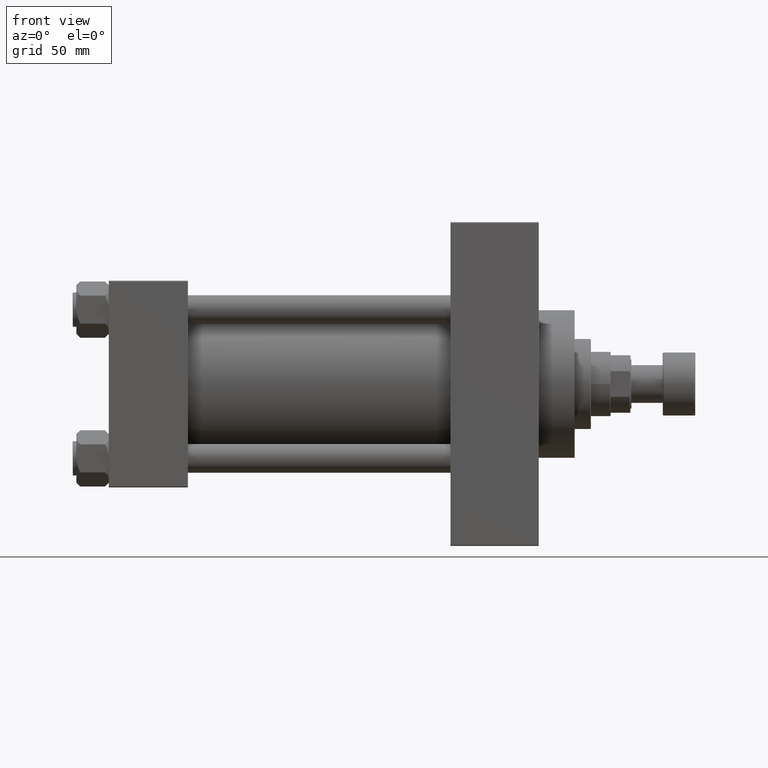
[diagram: clean part render]
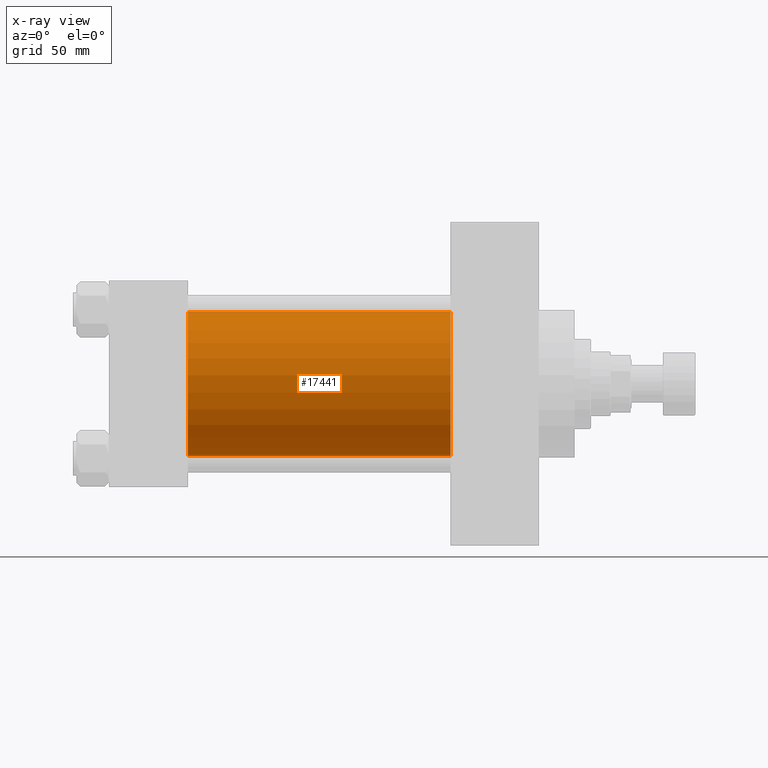
[diagram: x-ray — body ghosted, one internal face saturated and labeled with its STEP entity id]
A machine part, front view, then the same camera in x-ray: the body is ghosted and one INTERNAL B-rep face — a face not visible from any outside direction — is saturated and labeled: STEP entity #17441.
In plain terms, the highlighted cylindrical surface (partial cylindrical patch) has radius 40 mm, axis along (-1, -0, -0).
Its self-contained STEP definition (entity closure, byte-faithful):
#1651 = CARTESIAN_POINT ( 'NONE',  ( 44.00000000000000000, 2.296501982624201990E-15, -40.00000000000000000 ) ) ;
#3151 = DIRECTION ( 'NONE',  ( 1.000000000000000000, 0.000000000000000000, 0.000000000000000000 ) ) ;
#4783 = EDGE_CURVE ( 'NONE', #8950, #22886, #10594, .T. ) ;
#5691 = CARTESIAN_POINT ( 'NONE',  ( 190.0000000000000000, -2.602085213965210642E-15, 40.00000000000000000 ) ) ;
#8075 = ORIENTED_EDGE ( 'NONE', *, *, #15205, .F. ) ;
#8950 = VERTEX_POINT ( 'NONE', #41140 ) ;
#10594 = LINE ( 'NONE', #35493, #24299 ) ;
#12123 = LINE ( 'NONE', #26521, #14126 ) ;
#13605 = DIRECTION ( 'NONE',  ( -1.000000000000000000, -0.000000000000000000, -0.000000000000000000 ) ) ;
#13737 = DIRECTION ( 'NONE',  ( 0.000000000000000000, 0.000000000000000000, -1.000000000000000000 ) ) ;
#14126 = VECTOR ( 'NONE', #19671, 1000.000000000000000 ) ;
#15205 = EDGE_CURVE ( 'NONE', #20830, #22886, #28881, .T. ) ;
#16273 = EDGE_CURVE ( 'NONE', #47179, #20830, #12123, .T. ) ;
#17441 = ADVANCED_FACE ( 'NONE', ( #40360 ), #29201, .F. ) ;
#19091 = EDGE_CURVE ( 'NONE', #47179, #8950, #47661, .T. ) ;
#19671 = DIRECTION ( 'NONE',  ( -1.000000000000000000, -0.000000000000000000, -0.000000000000000000 ) ) ;
#20830 = VERTEX_POINT ( 'NONE', #24776 ) ;
#21878 = CARTESIAN_POINT ( 'NONE',  ( 190.0000000000000000, -2.602085213965210642E-15, 0.000000000000000000 ) ) ;
#22886 = VERTEX_POINT ( 'NONE', #1651 ) ;
#24299 = VECTOR ( 'NONE', #25457, 1000.000000000000000 ) ;
#24776 = CARTESIAN_POINT ( 'NONE',  ( 44.00000000000000000, -2.602085213965210642E-15, 40.00000000000000000 ) ) ;
#24954 = CARTESIAN_POINT ( 'NONE',  ( 190.0000000000000000, -2.602085213965210642E-15, 0.000000000000000000 ) ) ;
#25457 = DIRECTION ( 'NONE',  ( -1.000000000000000000, -0.000000000000000000, -0.000000000000000000 ) ) ;
#26521 = CARTESIAN_POINT ( 'NONE',  ( 190.0000000000000000, -2.602085213965210642E-15, 40.00000000000000000 ) ) ;
#27482 = AXIS2_PLACEMENT_3D ( 'NONE', #24954, #39295, #13737 ) ;
#28881 = CIRCLE ( 'NONE', #34314, 40.00000000000000000 ) ;
#29201 = CYLINDRICAL_SURFACE ( 'NONE', #32866, 40.00000000000000000 ) ;
#29449 = CARTESIAN_POINT ( 'NONE',  ( 44.00000000000000000, -2.602085213965210642E-15, 0.000000000000000000 ) ) ;
#32609 = DIRECTION ( 'NONE',  ( 0.000000000000000000, 0.000000000000000000, -1.000000000000000000 ) ) ;
#32866 = AXIS2_PLACEMENT_3D ( 'NONE', #21878, #13605, #44011 ) ;
#33082 = ORIENTED_EDGE ( 'NONE', *, *, #19091, .T. ) ;
#34314 = AXIS2_PLACEMENT_3D ( 'NONE', #29449, #3151, #32609 ) ;
#35493 = CARTESIAN_POINT ( 'NONE',  ( 190.0000000000000000, 2.296501982624201990E-15, -40.00000000000000000 ) ) ;
#36858 = EDGE_LOOP ( 'NONE', ( #33082, #44665, #8075, #44439 ) ) ;
#39295 = DIRECTION ( 'NONE',  ( 1.000000000000000000, 0.000000000000000000, 0.000000000000000000 ) ) ;
#40360 = FACE_OUTER_BOUND ( 'NONE', #36858, .T. ) ;
#41140 = CARTESIAN_POINT ( 'NONE',  ( 190.0000000000000000, 2.296501982624201990E-15, -40.00000000000000000 ) ) ;
#44011 = DIRECTION ( 'NONE',  ( 0.000000000000000000, 0.000000000000000000, 1.000000000000000000 ) ) ;
#44439 = ORIENTED_EDGE ( 'NONE', *, *, #16273, .F. ) ;
#44665 = ORIENTED_EDGE ( 'NONE', *, *, #4783, .T. ) ;
#47179 = VERTEX_POINT ( 'NONE', #5691 ) ;
#47661 = CIRCLE ( 'NONE', #27482, 40.00000000000000000 ) ;